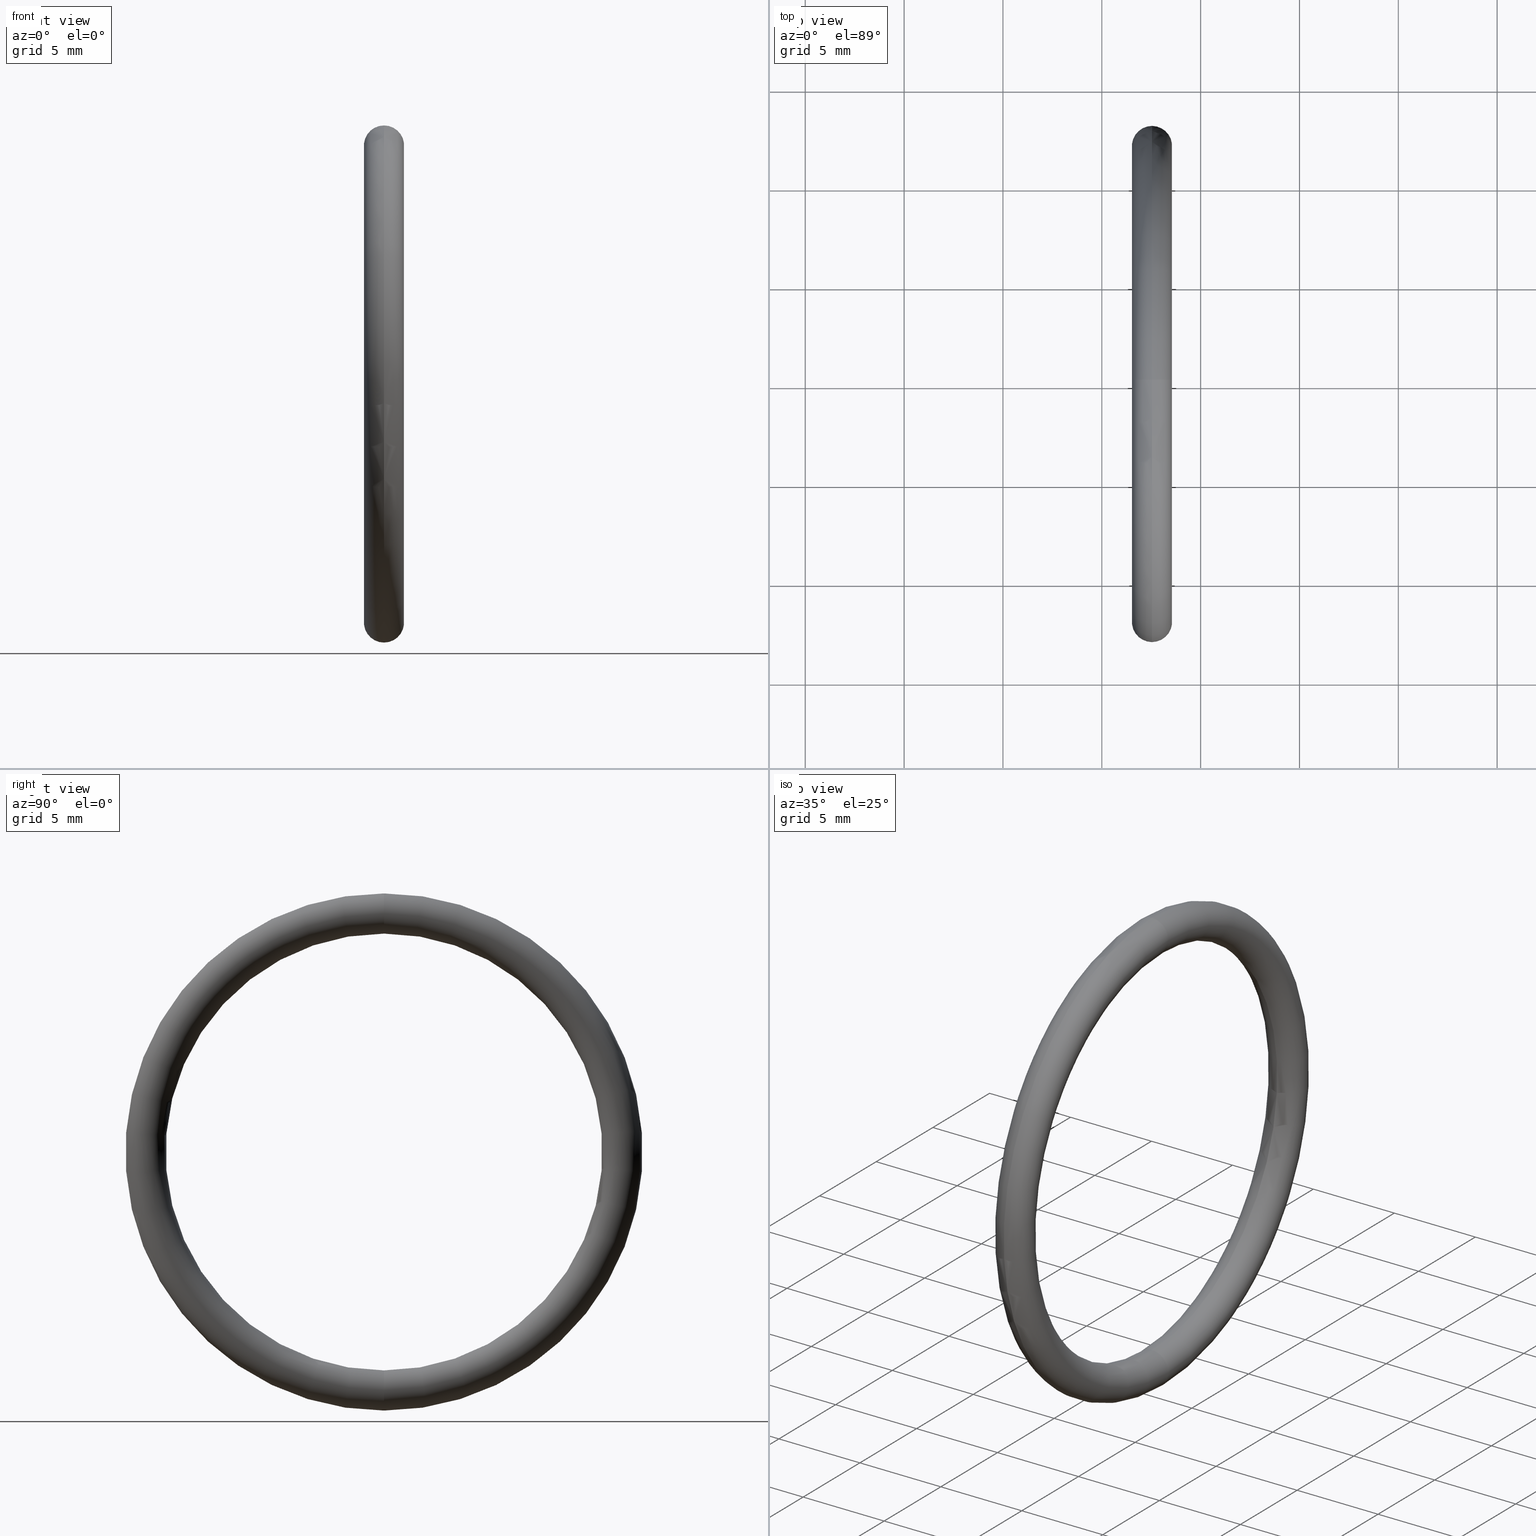
[diagram: canonical four-view strip — front | top / right | iso, engineering-drawing reading convention]
A machine part, canonical four-view strip (front | top / right | iso — engineering-drawing reading convention). The complete STEP part file that produces these views, byte-faithful:
ISO-10303-21;
HEADER;
FILE_DESCRIPTION (( 'STEP AP203' ),
    '1' );
FILE_NAME ('OM-25-BN.STEP',
    '2008-04-02T11:56:39',
    ( 'BAYSTATE' ),
    ( 'BAYSTATE' ),
    'SwSTEP 2.0',
    'SolidWorks 2007',
    '' );
FILE_SCHEMA (( 'CONFIG_CONTROL_DESIGN' ));
ENDSEC;

DATA;
#1 = CARTESIAN_POINT ( 'NONE',  ( 0.1000000000000000700, 0.0000000000000000000, 0.5150000000000000100 ) ) ;
#2 = AXIS2_PLACEMENT_3D ( 'NONE', #11, #13, #4 ) ;
#3 = CARTESIAN_POINT ( 'NONE',  ( 0.1000000000000000700, 6.306931015608868600E-017, -0.5150000000000000100 ) ) ;
#4 = DIRECTION ( 'NONE',  ( 0.0000000000000000000, -1.224646799147353000E-016, 1.000000000000000000 ) ) ;
#5 = CARTESIAN_POINT ( 'NONE',  ( 0.1000000000000000700, 0.0000000000000000000, 0.4350000000000000000 ) ) ;
#6 = DIRECTION ( 'NONE',  ( 0.0000000000000000000, 0.0000000000000000000, 1.000000000000000000 ) ) ;
#7 = DIRECTION ( 'NONE',  ( -1.000000000000000000, 0.0000000000000000000, 0.0000000000000000000 ) ) ;
#8 = CARTESIAN_POINT ( 'NONE',  ( 0.1000000000000000700, 0.0000000000000000000, 0.0000000000000000000 ) ) ;
#9 = AXIS2_PLACEMENT_3D ( 'NONE', #8, #7, #6 ) ;
#10 = CIRCLE ( 'NONE', #9, 0.5150000000000000100 ) ;
#11 = CARTESIAN_POINT ( 'NONE',  ( 0.1000000000000000700, 5.817072295949927200E-017, -0.4749999999999999800 ) ) ;
#12 = CARTESIAN_POINT ( 'NONE',  ( 0.1000000000000000700, 5.327213576290986400E-017, -0.4350000000000000000 ) ) ;
#13 = DIRECTION ( 'NONE',  ( 0.0000000000000000000, 1.000000000000000000, 1.224646799147353200E-016 ) ) ;
#14 = DIMENSIONAL_EXPONENTS ( 1.000000000000000000, 0.0000000000000000000, 0.0000000000000000000, 0.0000000000000000000, 0.0000000000000000000, 0.0000000000000000000, 0.0000000000000000000 ) ;
#15 =( LENGTH_UNIT ( ) NAMED_UNIT ( * ) SI_UNIT ( $, .METRE. ) );
#16 = LENGTH_MEASURE_WITH_UNIT ( LENGTH_MEASURE( 0.02539999999999999900 ), #15 );
#17 =( NAMED_UNIT ( * ) SI_UNIT ( $, .STERADIAN. ) SOLID_ANGLE_UNIT ( ) );
#18 =( NAMED_UNIT ( * ) PLANE_ANGLE_UNIT ( ) SI_UNIT ( $, .RADIAN. ) );
#19 =( CONVERSION_BASED_UNIT ( 'INCH', #16 ) LENGTH_UNIT ( ) NAMED_UNIT ( #14 ) );
#20 = CARTESIAN_POINT ( 'NONE',  ( 0.0000000000000000000, 0.0000000000000000000, 0.0000000000000000000 ) ) ;
#21 = UNCERTAINTY_MEASURE_WITH_UNIT (LENGTH_MEASURE( 1.000000000000000100E-005 ), #19, 'distance_accuracy_value', 'NONE');
#22 = DIRECTION ( 'NONE',  ( 1.000000000000000000, 0.0000000000000000000, 0.0000000000000000000 ) ) ;
#23 = DIRECTION ( 'NONE',  ( 0.0000000000000000000, 0.0000000000000000000, 1.000000000000000000 ) ) ;
#24 = AXIS2_PLACEMENT_3D ( 'NONE', #20, #23, #22 ) ;
#25 = ADVANCED_BREP_SHAPE_REPRESENTATION ( 'OM-25-BN', ( #127, #24 ), #26 ) ;
#26 =( GEOMETRIC_REPRESENTATION_CONTEXT ( 3 ) GLOBAL_UNCERTAINTY_ASSIGNED_CONTEXT ( ( #21 ) ) GLOBAL_UNIT_ASSIGNED_CONTEXT ( ( #19, #18, #17 ) ) REPRESENTATION_CONTEXT ( 'NONE', 'WORKASPACE' ) );
#27 = PRODUCT ( 'OM-25-BN', 'OM-25-BN', '', ( #31 ) ) ;
#28 = PERSON ( 'UNSPECIFIED', 'UNSPECIFIED', 'UNSPECIFIED', ('UNSPECIFIED'), ('UNSPECIFIED'), ('UNSPECIFIED') ) ;
#29 = APPROVAL_ROLE ( '' ) ;
#30 = APPROVAL ( #33, 'UNSPECIFIED' ) ;
#31 = MECHANICAL_CONTEXT ( 'NONE', #32, 'mechanical' ) ;
#32 = APPLICATION_CONTEXT ( 'configuration controlled 3d designs of mechanical parts and assemblies' ) ;
#33 = APPROVAL_STATUS ( 'not_yet_approved' ) ;
#34 = APPLICATION_PROTOCOL_DEFINITION ( 'international standard', 'config_control_design', 1994, #32 ) ;
#35 = APPROVAL_PERSON_ORGANIZATION ( #42, #30, #29 ) ;
#36 = LOCAL_TIME ( 17, 26, 39.00000000000000000, #40 ) ;
#37 = APPROVAL_DATE_TIME ( #41, #30 ) ;
#38 = CC_DESIGN_APPROVAL ( #30, ( #43 ) ) ;
#39 = CALENDAR_DATE ( 2008, 2, 4 ) ;
#40 = COORDINATED_UNIVERSAL_TIME_OFFSET ( 5, 30, .AHEAD. ) ;
#41 = DATE_AND_TIME ( #39, #36 ) ;
#42 = PERSON_AND_ORGANIZATION ( #28, #45 ) ;
#43 = PRODUCT_DEFINITION ( 'UNKNOWN', '', #56, #44 ) ;
#44 = DESIGN_CONTEXT ( 'detailed design', #47, 'design' ) ;
#45 = ORGANIZATION ( 'UNSPECIFIED', 'UNSPECIFIED', '' ) ;
#46 = APPLICATION_PROTOCOL_DEFINITION ( 'international standard', 'config_control_design', 1994, #47 ) ;
#47 = APPLICATION_CONTEXT ( 'configuration controlled 3d designs of mechanical parts and assemblies' ) ;
#48 = CC_DESIGN_PERSON_AND_ORGANIZATION_ASSIGNMENT ( #50, #49, ( #27 ) ) ;
#49 = PERSON_AND_ORGANIZATION_ROLE ( 'design_owner' ) ;
#50 = PERSON_AND_ORGANIZATION ( #28, #45 ) ;
#51 = PERSON_AND_ORGANIZATION ( #28, #45 ) ;
#52 = CC_DESIGN_PERSON_AND_ORGANIZATION_ASSIGNMENT ( #51, #61, ( #43 ) ) ;
#53 = LOCAL_TIME ( 17, 26, 39.00000000000000000, #62 ) ;
#54 = APPROVAL_STATUS ( 'not_yet_approved' ) ;
#55 = PERSON_AND_ORGANIZATION ( #28, #45 ) ;
#56 = PRODUCT_DEFINITION_FORMATION_WITH_SPECIFIED_SOURCE ( 'ANY', '', #27, .NOT_KNOWN. ) ;
#57 = CC_DESIGN_DATE_AND_TIME_ASSIGNMENT ( #59, #58, ( #43 ) ) ;
#58 = DATE_TIME_ROLE ( 'creation_date' ) ;
#59 = DATE_AND_TIME ( #60, #53 ) ;
#60 = CALENDAR_DATE ( 2008, 2, 4 ) ;
#61 = PERSON_AND_ORGANIZATION_ROLE ( 'creator' ) ;
#62 = COORDINATED_UNIVERSAL_TIME_OFFSET ( 5, 30, .AHEAD. ) ;
#63 = SHAPE_DEFINITION_REPRESENTATION ( #64, #25 ) ;
#64 = PRODUCT_DEFINITION_SHAPE ( 'NONE', 'NONE',  #43 ) ;
#65 = PRODUCT_RELATED_PRODUCT_CATEGORY ( 'detail', '', ( #27 ) ) ;
#66 = CC_DESIGN_SECURITY_CLASSIFICATION ( #87, ( #56 ) ) ;
#67 = CC_DESIGN_APPROVAL ( #75, ( #87 ) ) ;
#68 = APPROVAL_DATE_TIME ( #69, #75 ) ;
#69 = DATE_AND_TIME ( #70, #71 ) ;
#70 = CALENDAR_DATE ( 2008, 2, 4 ) ;
#71 = LOCAL_TIME ( 17, 26, 39.00000000000000000, #72 ) ;
#72 = COORDINATED_UNIVERSAL_TIME_OFFSET ( 5, 30, .AHEAD. ) ;
#73 = APPROVAL_PERSON_ORGANIZATION ( #77, #75, #74 ) ;
#74 = APPROVAL_ROLE ( '' ) ;
#75 = APPROVAL ( #76, 'UNSPECIFIED' ) ;
#76 = APPROVAL_STATUS ( 'not_yet_approved' ) ;
#77 = PERSON_AND_ORGANIZATION ( #28, #45 ) ;
#78 = CC_DESIGN_DATE_AND_TIME_ASSIGNMENT ( #80, #79, ( #87 ) ) ;
#79 = DATE_TIME_ROLE ( 'classification_date' ) ;
#80 = DATE_AND_TIME ( #81, #82 ) ;
#81 = CALENDAR_DATE ( 2008, 2, 4 ) ;
#82 = LOCAL_TIME ( 17, 26, 39.00000000000000000, #83 ) ;
#83 = COORDINATED_UNIVERSAL_TIME_OFFSET ( 5, 30, .AHEAD. ) ;
#84 = CC_DESIGN_PERSON_AND_ORGANIZATION_ASSIGNMENT ( #86, #85, ( #87 ) ) ;
#85 = PERSON_AND_ORGANIZATION_ROLE ( 'classification_officer' ) ;
#86 = PERSON_AND_ORGANIZATION ( #28, #45 ) ;
#87 = SECURITY_CLASSIFICATION ( '', '', #88 ) ;
#88 = SECURITY_CLASSIFICATION_LEVEL ( 'unclassified' ) ;
#89 = CC_DESIGN_PERSON_AND_ORGANIZATION_ASSIGNMENT ( #91, #90, ( #56 ) ) ;
#90 = PERSON_AND_ORGANIZATION_ROLE ( 'design_supplier' ) ;
#91 = PERSON_AND_ORGANIZATION ( #28, #45 ) ;
#92 = CC_DESIGN_PERSON_AND_ORGANIZATION_ASSIGNMENT ( #94, #93, ( #56 ) ) ;
#93 = PERSON_AND_ORGANIZATION_ROLE ( 'creator' ) ;
#94 = PERSON_AND_ORGANIZATION ( #28, #45 ) ;
#95 = CC_DESIGN_APPROVAL ( #103, ( #56 ) ) ;
#96 = APPROVAL_DATE_TIME ( #97, #103 ) ;
#97 = DATE_AND_TIME ( #98, #99 ) ;
#98 = CALENDAR_DATE ( 2008, 2, 4 ) ;
#99 = LOCAL_TIME ( 17, 26, 39.00000000000000000, #100 ) ;
#100 = COORDINATED_UNIVERSAL_TIME_OFFSET ( 5, 30, .AHEAD. ) ;
#101 = APPROVAL_PERSON_ORGANIZATION ( #55, #103, #102 ) ;
#102 = APPROVAL_ROLE ( '' ) ;
#103 = APPROVAL ( #54, 'UNSPECIFIED' ) ;
#104 = ORIENTED_EDGE ( 'NONE', *, *, #105, .F. ) ;
#105 = EDGE_CURVE ( 'NONE', #137, #136, #160, .T. ) ;
#106 = ORIENTED_EDGE ( 'NONE', *, *, #125, .T. ) ;
#107 = ORIENTED_EDGE ( 'NONE', *, *, #108, .T. ) ;
#108 = EDGE_CURVE ( 'NONE', #133, #132, #155, .T. ) ;
#109 = ADVANCED_FACE ( 'NONE', ( #151 ), #150, .T. ) ;
#110 = EDGE_LOOP ( 'NONE', ( #111, #112, #113, #162 ) ) ;
#111 = ORIENTED_EDGE ( 'NONE', *, *, #135, .F. ) ;
#112 = ORIENTED_EDGE ( 'NONE', *, *, #108, .F. ) ;
#113 = ORIENTED_EDGE ( 'NONE', *, *, #117, .T. ) ;
#114 = ORIENTED_EDGE ( 'NONE', *, *, #115, .T. ) ;
#115 = EDGE_CURVE ( 'NONE', #136, #137, #144, .T. ) ;
#116 = ORIENTED_EDGE ( 'NONE', *, *, #117, .F. ) ;
#117 = EDGE_CURVE ( 'NONE', #133, #137, #139, .T. ) ;
#118 = ADVANCED_FACE ( 'NONE', ( #140 ), #192, .T. ) ;
#119 = EDGE_LOOP ( 'NONE', ( #120, #121, #123, #124 ) ) ;
#120 = ORIENTED_EDGE ( 'NONE', *, *, #115, .F. ) ;
#121 = ORIENTED_EDGE ( 'NONE', *, *, #122, .T. ) ;
#122 = EDGE_CURVE ( 'NONE', #136, #132, #188, .T. ) ;
#123 = ORIENTED_EDGE ( 'NONE', *, *, #131, .T. ) ;
#124 = ORIENTED_EDGE ( 'NONE', *, *, #125, .F. ) ;
#125 = EDGE_CURVE ( 'NONE', #137, #133, #183, .T. ) ;
#126 = ADVANCED_FACE ( 'NONE', ( #178 ), #177, .T. ) ;
#127 = MANIFOLD_SOLID_BREP ( 'NONE', #163 ) ;
#128 = ADVANCED_FACE ( 'NONE', ( #172 ), #171, .T. ) ;
#129 = EDGE_LOOP ( 'NONE', ( #130, #134, #114, #116 ) ) ;
#130 = ORIENTED_EDGE ( 'NONE', *, *, #131, .F. ) ;
#131 = EDGE_CURVE ( 'NONE', #132, #133, #166, .T. ) ;
#132 = VERTEX_POINT ( 'NONE', #3 ) ;
#133 = VERTEX_POINT ( 'NONE', #12 ) ;
#134 = ORIENTED_EDGE ( 'NONE', *, *, #135, .T. ) ;
#135 = EDGE_CURVE ( 'NONE', #132, #136, #10, .T. ) ;
#136 = VERTEX_POINT ( 'NONE', #1 ) ;
#137 = VERTEX_POINT ( 'NONE', #5 ) ;
#138 = AXIS2_PLACEMENT_3D ( 'NONE', #196, #195, #194 ) ;
#139 = CIRCLE ( 'NONE', #138, 0.4350000000000000000 ) ;
#140 = FACE_OUTER_BOUND ( 'NONE', #119, .T. ) ;
#141 = DIRECTION ( 'NONE',  ( 0.0000000000000000000, 0.0000000000000000000, -1.000000000000000000 ) ) ;
#142 = DIRECTION ( 'NONE',  ( 0.0000000000000000000, -1.000000000000000000, 0.0000000000000000000 ) ) ;
#143 = AXIS2_PLACEMENT_3D ( 'NONE', #149, #142, #141 ) ;
#144 = CIRCLE ( 'NONE', #143, 0.03999999999999998000 ) ;
#145 = DIRECTION ( 'NONE',  ( 0.0000000000000000000, 0.0000000000000000000, 1.000000000000000000 ) ) ;
#146 = DIRECTION ( 'NONE',  ( -1.000000000000000000, 0.0000000000000000000, 0.0000000000000000000 ) ) ;
#147 = CARTESIAN_POINT ( 'NONE',  ( 0.1000000000000000700, 0.0000000000000000000, 0.0000000000000000000 ) ) ;
#148 = AXIS2_PLACEMENT_3D ( 'NONE', #147, #146, #145 ) ;
#149 = CARTESIAN_POINT ( 'NONE',  ( 0.1000000000000000700, 0.0000000000000000000, 0.4749999999999999800 ) ) ;
#150 = TOROIDAL_SURFACE ( 'NONE', #148, 0.4749999999999999800, 0.04000000000000000100 ) ;
#151 = FACE_OUTER_BOUND ( 'NONE', #110, .T. ) ;
#152 = DIRECTION ( 'NONE',  ( 0.0000000000000000000, -1.224646799147353000E-016, 1.000000000000000000 ) ) ;
#153 = DIRECTION ( 'NONE',  ( 0.0000000000000000000, 1.000000000000000000, 1.224646799147353200E-016 ) ) ;
#154 = AXIS2_PLACEMENT_3D ( 'NONE', #161, #153, #152 ) ;
#155 = CIRCLE ( 'NONE', #154, 0.03999999999999998000 ) ;
#156 = DIRECTION ( 'NONE',  ( 0.0000000000000000000, 0.0000000000000000000, -1.000000000000000000 ) ) ;
#157 = DIRECTION ( 'NONE',  ( 0.0000000000000000000, -1.000000000000000000, 0.0000000000000000000 ) ) ;
#158 = CARTESIAN_POINT ( 'NONE',  ( 0.1000000000000000700, 0.0000000000000000000, 0.4749999999999999800 ) ) ;
#159 = AXIS2_PLACEMENT_3D ( 'NONE', #158, #157, #156 ) ;
#160 = CIRCLE ( 'NONE', #159, 0.03999999999999998000 ) ;
#161 = CARTESIAN_POINT ( 'NONE',  ( 0.1000000000000000700, 5.817072295949927200E-017, -0.4749999999999999800 ) ) ;
#162 = ORIENTED_EDGE ( 'NONE', *, *, #105, .T. ) ;
#163 = CLOSED_SHELL ( 'NONE', ( #128, #118, #126, #109 ) ) ;
#164 = EDGE_LOOP ( 'NONE', ( #165, #104, #106, #107 ) ) ;
#165 = ORIENTED_EDGE ( 'NONE', *, *, #122, .F. ) ;
#166 = CIRCLE ( 'NONE', #2, 0.03999999999999998000 ) ;
#167 = DIRECTION ( 'NONE',  ( 0.0000000000000000000, 0.0000000000000000000, 1.000000000000000000 ) ) ;
#168 = DIRECTION ( 'NONE',  ( -1.000000000000000000, 0.0000000000000000000, 0.0000000000000000000 ) ) ;
#169 = CARTESIAN_POINT ( 'NONE',  ( 0.1000000000000000700, 0.0000000000000000000, 0.0000000000000000000 ) ) ;
#170 = AXIS2_PLACEMENT_3D ( 'NONE', #169, #168, #167 ) ;
#171 = TOROIDAL_SURFACE ( 'NONE', #170, 0.4749999999999999800, 0.04000000000000000100 ) ;
#172 = FACE_OUTER_BOUND ( 'NONE', #129, .T. ) ;
#173 = DIRECTION ( 'NONE',  ( 0.0000000000000000000, 0.0000000000000000000, 1.000000000000000000 ) ) ;
#174 = DIRECTION ( 'NONE',  ( -1.000000000000000000, 0.0000000000000000000, 0.0000000000000000000 ) ) ;
#175 = CARTESIAN_POINT ( 'NONE',  ( 0.1000000000000000700, 0.0000000000000000000, 0.0000000000000000000 ) ) ;
#176 = AXIS2_PLACEMENT_3D ( 'NONE', #175, #174, #173 ) ;
#177 = TOROIDAL_SURFACE ( 'NONE', #176, 0.4749999999999999800, 0.04000000000000000100 ) ;
#178 = FACE_OUTER_BOUND ( 'NONE', #164, .T. ) ;
#179 = DIRECTION ( 'NONE',  ( 0.0000000000000000000, 0.0000000000000000000, 1.000000000000000000 ) ) ;
#180 = DIRECTION ( 'NONE',  ( -1.000000000000000000, 0.0000000000000000000, 0.0000000000000000000 ) ) ;
#181 = CARTESIAN_POINT ( 'NONE',  ( 0.1000000000000000700, 0.0000000000000000000, 0.0000000000000000000 ) ) ;
#182 = AXIS2_PLACEMENT_3D ( 'NONE', #181, #180, #179 ) ;
#183 = CIRCLE ( 'NONE', #182, 0.4350000000000000000 ) ;
#184 = DIRECTION ( 'NONE',  ( 0.0000000000000000000, 0.0000000000000000000, 1.000000000000000000 ) ) ;
#185 = DIRECTION ( 'NONE',  ( -1.000000000000000000, 0.0000000000000000000, 0.0000000000000000000 ) ) ;
#186 = CARTESIAN_POINT ( 'NONE',  ( 0.1000000000000000700, 0.0000000000000000000, 0.0000000000000000000 ) ) ;
#187 = AXIS2_PLACEMENT_3D ( 'NONE', #186, #185, #184 ) ;
#188 = CIRCLE ( 'NONE', #187, 0.5150000000000000100 ) ;
#189 = DIRECTION ( 'NONE',  ( 0.0000000000000000000, 0.0000000000000000000, 1.000000000000000000 ) ) ;
#190 = DIRECTION ( 'NONE',  ( -1.000000000000000000, 0.0000000000000000000, 0.0000000000000000000 ) ) ;
#191 = AXIS2_PLACEMENT_3D ( 'NONE', #193, #190, #189 ) ;
#192 = TOROIDAL_SURFACE ( 'NONE', #191, 0.4749999999999999800, 0.04000000000000000100 ) ;
#193 = CARTESIAN_POINT ( 'NONE',  ( 0.1000000000000000700, 0.0000000000000000000, 0.0000000000000000000 ) ) ;
#194 = DIRECTION ( 'NONE',  ( 0.0000000000000000000, 0.0000000000000000000, 1.000000000000000000 ) ) ;
#195 = DIRECTION ( 'NONE',  ( -1.000000000000000000, 0.0000000000000000000, 0.0000000000000000000 ) ) ;
#196 = CARTESIAN_POINT ( 'NONE',  ( 0.1000000000000000700, 0.0000000000000000000, 0.0000000000000000000 ) ) ;
ENDSEC;
END-ISO-10303-21;
